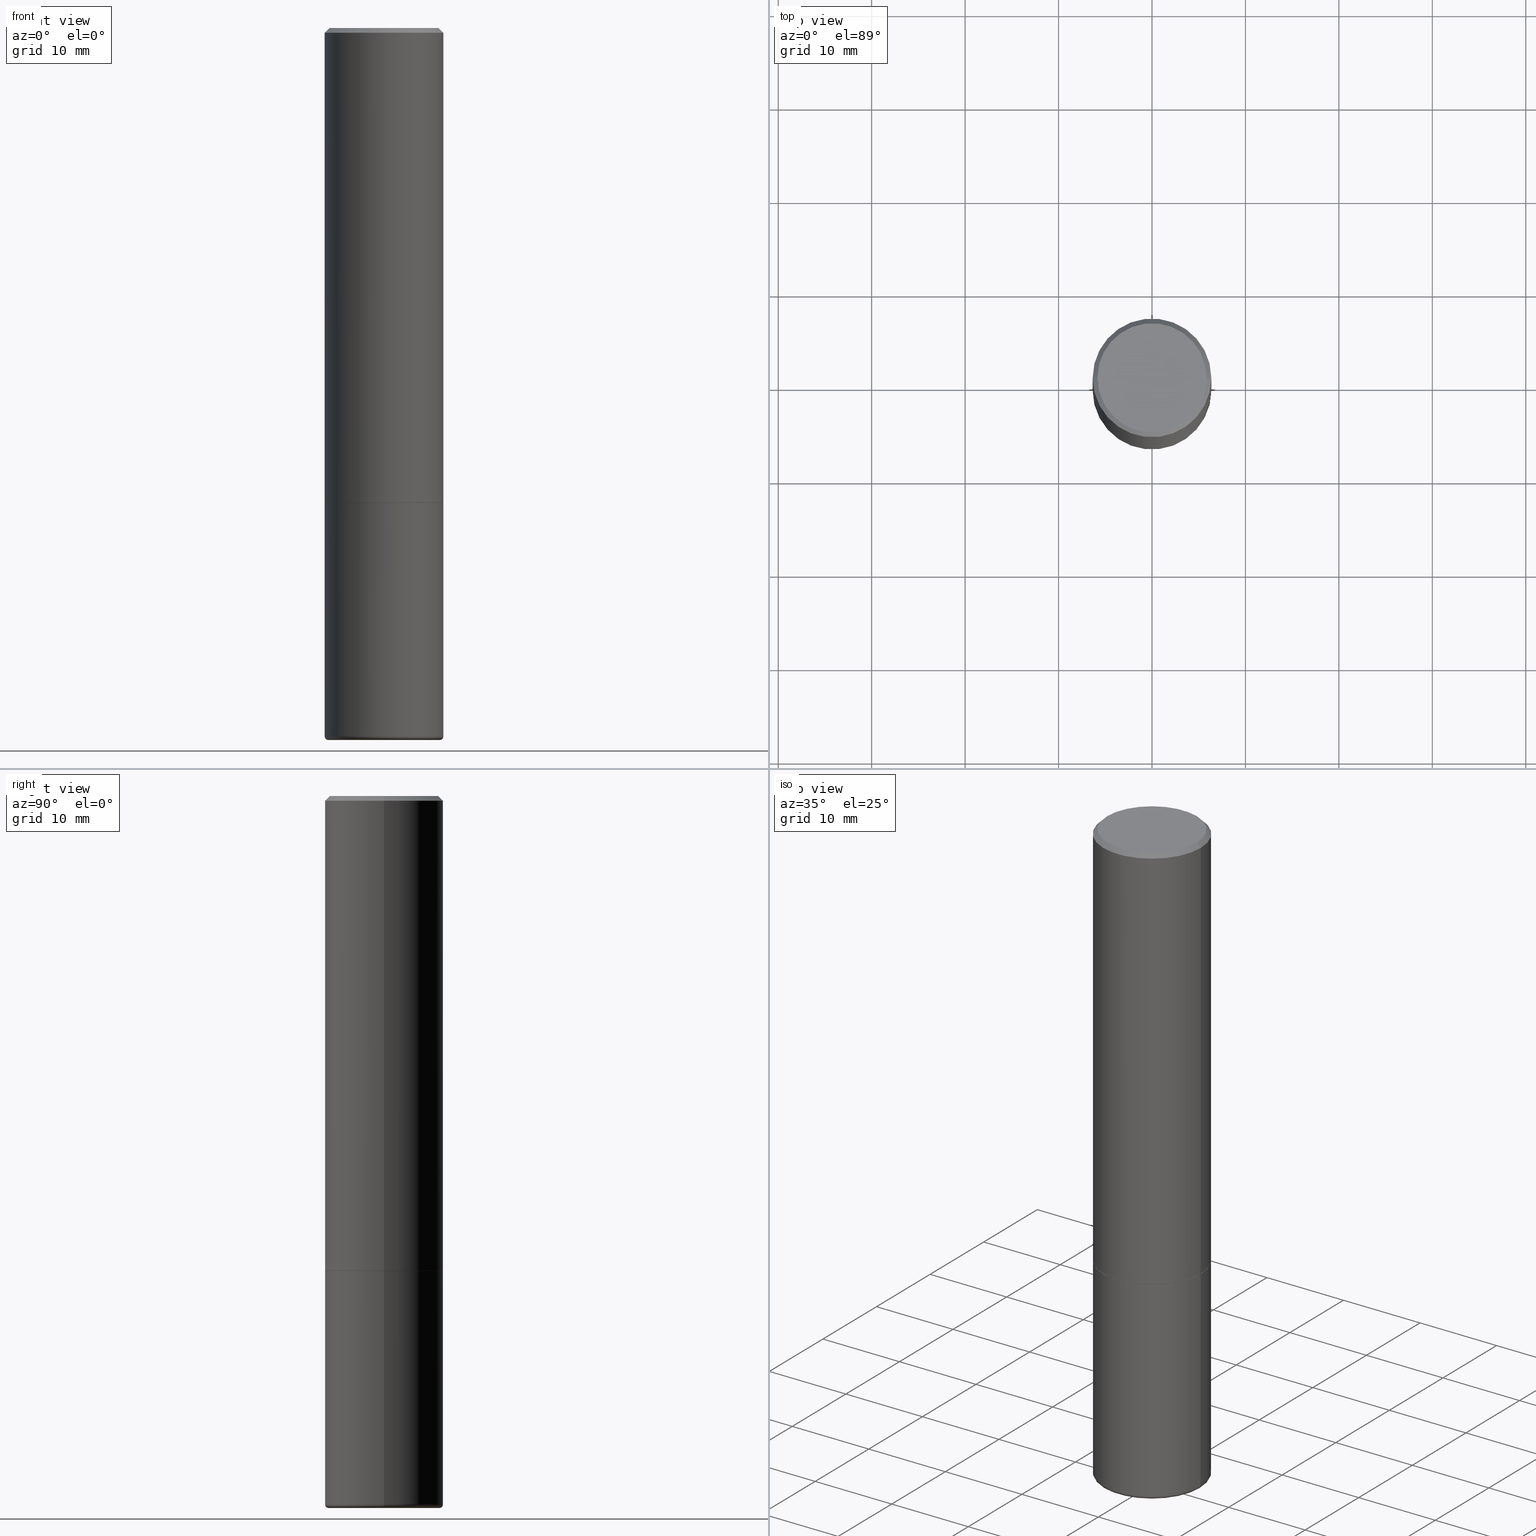
[diagram: canonical four-view strip — front | top / right | iso, engineering-drawing reading convention]
A machine part, canonical four-view strip (front | top / right | iso — engineering-drawing reading convention). The complete STEP part file that produces these views, byte-faithful:
ISO-10303-21;
HEADER;
FILE_DESCRIPTION (( 'STEP AP203' ),
    '1' );
FILE_NAME ('35604.STEP',
    '2022-11-02T20:26:05',
    ( '' ),
    ( '' ),
    'SwSTEP 2.0',
    'SolidWorks 2022',
    '' );
FILE_SCHEMA (( 'CONFIG_CONTROL_DESIGN' ));
ENDSEC;

DATA;
#1 = CARTESIAN_POINT ( 'NONE',  ( -0.2299999999999992328, 1.640996229256267392E-15, 8.537024980189468815E-18 ) ) ;
#2 = CARTESIAN_POINT ( 'NONE',  ( -0.2500000000000000000, 1.776356839400250465E-15, -1.229733772563726445E-29 ) ) ;
#3 = ORIENTED_EDGE ( 'NONE', *, *, #424, .F. ) ;
#4 = CALENDAR_DATE ( 2022, 2, 11 ) ;
#5 = VECTOR ( 'NONE', #108, 39.37007874015748143 ) ;
#6 = ORIENTED_EDGE ( 'NONE', *, *, #339, .F. ) ;
#7 = ORIENTED_EDGE ( 'NONE', *, *, #385, .F. ) ;
#8 = EDGE_CURVE ( 'NONE', #116, #348, #92, .T. ) ;
#9 = ORIENTED_EDGE ( 'NONE', *, *, #311, .T. ) ;
#10 = DIRECTION ( 'NONE',  ( -1.000000000000000000, 6.982962677686264344E-15, 0.000000000000000000 ) ) ;
#11 = AXIS2_PLACEMENT_3D ( 'NONE', #99, #437, #215 ) ;
#12 = EDGE_CURVE ( 'NONE', #35, #489, #285, .T. ) ;
#13 = AXIS2_PLACEMENT_3D ( 'NONE', #441, #356, #314 ) ;
#14 = EDGE_LOOP ( 'NONE', ( #334, #271, #75, #232 ) ) ;
#15 = DIRECTION ( 'NONE',  ( -1.000000000000000000, 6.982962677686267499E-15, 0.000000000000000000 ) ) ;
#16 = CARTESIAN_POINT ( 'NONE',  ( -0.2082041019675246463, -9.019750068704174352E-15, -2.999767298070359800 ) ) ;
#17 = CARTESIAN_POINT ( 'NONE',  ( 7.299725783202014843E-29, -1.042207379062045357E-14, -2.985000571154037718 ) ) ;
#18 = CARTESIAN_POINT ( 'NONE',  ( 0.000000000000000000, 0.000000000000000000, 0.000000000000000000 ) ) ;
#19 = CALENDAR_DATE ( 2022, 2, 11 ) ;
#20 = DIRECTION ( 'NONE',  ( 1.000000000000000000, -6.982962677686266711E-15, 4.876176775795935793E-29 ) ) ;
#21 = CIRCLE ( 'NONE', #265, 0.01499999999999983985 ) ;
#22 = PERSON_AND_ORGANIZATION ( #132, #202 ) ;
#23 = DIRECTION ( 'NONE',  ( 1.000000000000000000, -6.982962677686266711E-15, 0.000000000000000000 ) ) ;
#24 = APPLICATION_PROTOCOL_DEFINITION ( 'international standard', 'config_control_design', 1994, #453 ) ;
#25 = ADVANCED_FACE ( 'NONE', ( #210 ), #272, .T. ) ;
#26 = DIRECTION ( 'NONE',  ( 1.000000000000000000, -6.982962677686213068E-15, 0.000000000000000000 ) ) ;
#27 = CC_DESIGN_PERSON_AND_ORGANIZATION_ASSIGNMENT ( #329, #142, ( #183 ) ) ;
#28 = CARTESIAN_POINT ( 'NONE',  ( 7.299725783202014843E-29, -1.042207379062045357E-14, -2.985000571154037718 ) ) ;
#29 = CIRCLE ( 'NONE', #463, 0.2299999999999992328 ) ;
#30 = LINE ( 'NONE', #31, #150 ) ;
#31 = CARTESIAN_POINT ( 'NONE',  ( 0.2348691019675246683, -1.208576302031603783E-14, -3.000000000000000444 ) ) ;
#32 = VERTEX_POINT ( 'NONE', #282 ) ;
#33 = ADVANCED_FACE ( 'NONE', ( #426 ), #278, .T. ) ;
#34 = FACE_OUTER_BOUND ( 'NONE', #88, .T. ) ;
#35 = VERTEX_POINT ( 'NONE', #16 ) ;
#36 = CLOSED_SHELL ( 'NONE', ( #476, #200, #46, #153, #251, #144, #117, #413, #106 ) ) ;
#37 = COORDINATED_UNIVERSAL_TIME_OFFSET ( 5, 0, .BEHIND. ) ;
#38 = CIRCLE ( 'NONE', #352, 0.2082041019675246463 ) ;
#39 = DIRECTION ( 'NONE',  ( -2.445468806185136597E-29, 3.491481338843145583E-15, 1.000000000000000000 ) ) ;
#40 = ORIENTED_EDGE ( 'NONE', *, *, #159, .F. ) ;
#41 = DIRECTION ( 'NONE',  ( -2.445468806185136597E-29, 3.491481338843145583E-15, 1.000000000000000000 ) ) ;
#42 = ORIENTED_EDGE ( 'NONE', *, *, #64, .F. ) ;
#43 = VERTEX_POINT ( 'NONE', #177 ) ;
#44 = VERTEX_POINT ( 'NONE', #52 ) ;
#45 = VERTEX_POINT ( 'NONE', #435 ) ;
#46 = ADVANCED_FACE ( 'NONE', ( #90 ), #94, .T. ) ;
#47 = CARTESIAN_POINT ( 'NONE',  ( 4.890937612370273754E-29, -6.982962677686291954E-15, -2.000000000000000444 ) ) ;
#48 = ORIENTED_EDGE ( 'NONE', *, *, #290, .T. ) ;
#49 = DIRECTION ( 'NONE',  ( 1.000000000000000000, -6.982962677686270655E-15, 0.000000000000000000 ) ) ;
#50 = CONICAL_SURFACE ( 'NONE', #447, 0.2082041019675246463, 1.535889741755008586 ) ;
#51 = AXIS2_PLACEMENT_3D ( 'NONE', #469, #209, #49 ) ;
#52 = CARTESIAN_POINT ( 'NONE',  ( -0.2489999999999999991, -5.208412811295420884E-15, -2.000000000000000444 ) ) ;
#53 = DIRECTION ( 'NONE',  ( 1.000000000000000000, -6.982962677686269077E-15, 0.000000000000000000 ) ) ;
#54 = CARTESIAN_POINT ( 'NONE',  ( 7.336406418555409790E-29, -1.047444401652943635E-14, -3.000000000000000444 ) ) ;
#55 = DIRECTION ( 'NONE',  ( -1.000000000000000000, 7.105427357601001859E-15, 0.000000000000000000 ) ) ;
#56 = CARTESIAN_POINT ( 'NONE',  ( 4.890937612370273754E-29, -6.982962677686291954E-15, -2.000000000000000444 ) ) ;
#57 = APPROVAL ( #211, 'UNSPECIFIED' ) ;
#58 = CARTESIAN_POINT ( 'NONE',  ( 0.000000000000000000, 0.000000000000000000, 0.000000000000000000 ) ) ;
#59 = AXIS2_PLACEMENT_3D ( 'NONE', #168, #479, #403 ) ;
#60 = CYLINDRICAL_SURFACE ( 'NONE', #219, 0.2500000000000000000 ) ;
#61 = PERSON_AND_ORGANIZATION ( #132, #202 ) ;
#62 = DIRECTION ( 'NONE',  ( 1.000000000000000000, -6.982962677686270655E-15, 0.000000000000000000 ) ) ;
#63 =( CONVERSION_BASED_UNIT ( 'INCH', #246 ) LENGTH_UNIT ( ) NAMED_UNIT ( #338 ) );
#64 = EDGE_CURVE ( 'NONE', #444, #269, #319, .T. ) ;
#65 = CARTESIAN_POINT ( 'NONE',  ( 1.745740669421615390E-15, 0.2499999999999930334, -2.000000000000000888 ) ) ;
#66 = APPROVAL_STATUS ( 'not_yet_approved' ) ;
#67 = DIRECTION ( 'NONE',  ( 0.9993908270190957621, -6.978169709227547799E-15, -0.03489949670250241942 ) ) ;
#68 = VECTOR ( 'NONE', #297, 39.37007874015748143 ) ;
#69 = PERSON_AND_ORGANIZATION ( #132, #202 ) ;
#70 = CARTESIAN_POINT ( 'NONE',  ( 4.890937612370273754E-29, -6.982962677686291954E-15, -2.000000000000000444 ) ) ;
#71 = VERTEX_POINT ( 'NONE', #97 ) ;
#72 = LINE ( 'NONE', #226, #360 ) ;
#73 = EDGE_CURVE ( 'NONE', #32, #348, #148, .T. ) ;
#74 = DIRECTION ( 'NONE',  ( 1.000000000000000000, -6.982962677686266711E-15, 0.000000000000000000 ) ) ;
#75 = ORIENTED_EDGE ( 'NONE', *, *, #191, .F. ) ;
#76 = AXIS2_PLACEMENT_3D ( 'NONE', #54, #208, #245 ) ;
#77 = VECTOR ( 'NONE', #331, 39.37007874015748854 ) ;
#78 = DIRECTION ( 'NONE',  ( 1.000000000000000000, -6.982962677686265922E-15, 4.876176775795935793E-29 ) ) ;
#79 = ORIENTED_EDGE ( 'NONE', *, *, #185, .F. ) ;
#80 = APPROVAL_ROLE ( '' ) ;
#81 = CC_DESIGN_DATE_AND_TIME_ASSIGNMENT ( #404, #252, ( #179 ) ) ;
#82 = ORIENTED_EDGE ( 'NONE', *, *, #361, .F. ) ;
#83 = ORIENTED_EDGE ( 'NONE', *, *, #8, .F. ) ;
#84 = AXIS2_PLACEMENT_3D ( 'NONE', #47, #118, #78 ) ;
#85 = VERTEX_POINT ( 'NONE', #247 ) ;
#86 = ADVANCED_FACE ( 'NONE', ( #173 ), #350, .T. ) ;
#87 = DIRECTION ( 'NONE',  ( -2.445468806185136597E-29, 3.491481338843145583E-15, 1.000000000000000000 ) ) ;
#88 = EDGE_LOOP ( 'NONE', ( #127, #384, #155, #42 ) ) ;
#89 = CARTESIAN_POINT ( 'NONE',  ( 4.890937612370299433E-31, -6.982962677686328587E-17, -0.02000000000000010797 ) ) ;
#90 = FACE_OUTER_BOUND ( 'NONE', #14, .T. ) ;
#91 = DIRECTION ( 'NONE',  ( -2.445468806185136597E-29, 3.491481338843145583E-15, 1.000000000000000000 ) ) ;
#92 = CIRCLE ( 'NONE', #212, 0.01499999999999983985 ) ;
#93 = CONICAL_SURFACE ( 'NONE', #234, 0.2082041019675246463, 1.535889741755008586 ) ;
#94 = CYLINDRICAL_SURFACE ( 'NONE', #11, 0.2500000000000000000 ) ;
#95 = CARTESIAN_POINT ( 'NONE',  ( 0.2489999999999999991, -8.721720384430172617E-15, -2.000000000000000444 ) ) ;
#96 = APPROVAL ( #66, 'UNSPECIFIED' ) ;
#97 = CARTESIAN_POINT ( 'NONE',  ( -0.2499999999999993061, 1.675911042644698449E-15, -0.02000000000000010797 ) ) ;
#98 = CALENDAR_DATE ( 2022, 2, 11 ) ;
#99 = CARTESIAN_POINT ( 'NONE',  ( 0.000000000000000000, 0.000000000000000000, 0.000000000000000000 ) ) ;
#100 = EDGE_CURVE ( 'NONE', #158, #35, #429, .T. ) ;
#101 = PERSON_AND_ORGANIZATION ( #132, #202 ) ;
#102 = CLOSED_SHELL ( 'NONE', ( #299, #458, #86, #491, #33, #25, #400, #364 ) ) ;
#103 = LOCAL_TIME ( 16, 26, 5.000000000000000000, #107 ) ;
#104 = VERTEX_POINT ( 'NONE', #396 ) ;
#105 = LOCAL_TIME ( 16, 26, 5.000000000000000000, #293 ) ;
#106 = ADVANCED_FACE ( 'NONE', ( #433 ), #286, .F. ) ;
#107 = COORDINATED_UNIVERSAL_TIME_OFFSET ( 5, 0, .BEHIND. ) ;
#108 = DIRECTION ( 'NONE',  ( -2.445468806185136877E-29, 3.491481338843145188E-15, 1.000000000000000000 ) ) ;
#109 = MECHANICAL_CONTEXT ( 'NONE', #320, 'mechanical' ) ;
#110 = LINE ( 'NONE', #405, #68 ) ;
#111 = DIRECTION ( 'NONE',  ( 1.000000000000000000, -6.982962677686264344E-15, 0.000000000000000000 ) ) ;
#112 = AXIS2_PLACEMENT_3D ( 'NONE', #260, #486, #443 ) ;
#113 = DIRECTION ( 'NONE',  ( -0.7071067811865471286, 2.468850131082252722E-15, -0.7071067811865479058 ) ) ;
#114 = EDGE_LOOP ( 'NONE', ( #417, #457 ) ) ;
#115 = DIRECTION ( 'NONE',  ( -1.000000000000000000, 6.982962677686269077E-15, 0.000000000000000000 ) ) ;
#116 = VERTEX_POINT ( 'NONE', #357 ) ;
#117 = ADVANCED_FACE ( 'NONE', ( #399 ), #60, .T. ) ;
#118 = DIRECTION ( 'NONE',  ( -2.438088387897960049E-29, 3.491481338843145188E-15, 1.000000000000000000 ) ) ;
#119 = AXIS2_PLACEMENT_3D ( 'NONE', #255, #449, #111 ) ;
#120 = CC_DESIGN_PERSON_AND_ORGANIZATION_ASSIGNMENT ( #101, #408, ( #121 ) ) ;
#121 = PRODUCT_DEFINITION_FORMATION_WITH_SPECIFIED_SOURCE ( 'ANY', '', #183, .NOT_KNOWN. ) ;
#122 = CARTESIAN_POINT ( 'NONE',  ( -0.2350000000000001810, -8.752298361584217436E-15, -2.985000571154037718 ) ) ;
#123 = ORIENTED_EDGE ( 'NONE', *, *, #427, .T. ) ;
#124 = ORIENTED_EDGE ( 'NONE', *, *, #387, .F. ) ;
#125 = ORIENTED_EDGE ( 'NONE', *, *, #225, .T. ) ;
#126 = AXIS2_PLACEMENT_3D ( 'NONE', #58, #332, #137 ) ;
#127 = ORIENTED_EDGE ( 'NONE', *, *, #138, .T. ) ;
#128 = FACE_OUTER_BOUND ( 'NONE', #197, .T. ) ;
#129 = ORIENTED_EDGE ( 'NONE', *, *, #261, .F. ) ;
#130 = DIRECTION ( 'NONE',  ( -2.445468806185136877E-29, 3.491481338843145188E-15, 1.000000000000000000 ) ) ;
#131 = DIRECTION ( 'NONE',  ( -1.000000000000000000, 6.982962677686267499E-15, 0.000000000000000000 ) ) ;
#132 = PERSON ( 'UNSPECIFIED', 'UNSPECIFIED', 'UNSPECIFIED', ('UNSPECIFIED'), ('UNSPECIFIED'), ('UNSPECIFIED') ) ;
#133 = DIRECTION ( 'NONE',  ( -2.445468806185136597E-29, 3.491481338843145583E-15, 1.000000000000000000 ) ) ;
#134 = CIRCLE ( 'NONE', #213, 0.2348691019675246683 ) ;
#135 = ORIENTED_EDGE ( 'NONE', *, *, #8, .T. ) ;
#136 = DIRECTION ( 'NONE',  ( -6.982962677686266711E-15, -1.000000000000000000, 3.491481338843145583E-15 ) ) ;
#137 = DIRECTION ( 'NONE',  ( 1.000000000000000000, 0.000000000000000000, 0.000000000000000000 ) ) ;
#138 = EDGE_CURVE ( 'NONE', #444, #44, #414, .T. ) ;
#139 = PLANE ( 'NONE',  #480 ) ;
#140 = COORDINATED_UNIVERSAL_TIME_OFFSET ( 5, 0, .BEHIND. ) ;
#141 = DIRECTION ( 'NONE',  ( -0.9999619230641714207, 6.952228252019186602E-15, -0.008726535498369011531 ) ) ;
#142 = PERSON_AND_ORGANIZATION_ROLE ( 'design_owner' ) ;
#143 = LINE ( 'NONE', #409, #391 ) ;
#144 = ADVANCED_FACE ( 'NONE', ( #477 ), #139, .F. ) ;
#145 = LINE ( 'NONE', #407, #455 ) ;
#146 = EDGE_CURVE ( 'NONE', #348, #45, #188, .T. ) ;
#147 = CARTESIAN_POINT ( 'NONE',  ( -2.087702828670439639E-46, 2.980686340760894400E-32, 8.537024980200822558E-18 ) ) ;
#148 = CIRCLE ( 'NONE', #189, 0.2500000000000000000 ) ;
#149 = ORIENTED_EDGE ( 'NONE', *, *, #339, .T. ) ;
#150 = VECTOR ( 'NONE', #300, 39.37007874015748854 ) ;
#151 = DIRECTION ( 'NONE',  ( 1.000000000000000000, -6.982962677686269866E-15, 4.883557194083114022E-29 ) ) ;
#152 = DIRECTION ( 'NONE',  ( 1.000000000000000000, -6.982962677686266711E-15, 0.000000000000000000 ) ) ;
#153 = ADVANCED_FACE ( 'NONE', ( #253 ), #50, .F. ) ;
#154 = CARTESIAN_POINT ( 'NONE',  ( 1.606081415867835743E-15, 0.2299999999999992328, -7.987721954438203042E-16 ) ) ;
#155 = ORIENTED_EDGE ( 'NONE', *, *, #419, .F. ) ;
#156 = CIRCLE ( 'NONE', #490, 0.2299999999999992328 ) ;
#157 = ORIENTED_EDGE ( 'NONE', *, *, #474, .T. ) ;
#158 = VERTEX_POINT ( 'NONE', #370 ) ;
#159 = EDGE_CURVE ( 'NONE', #235, #347, #110, .T. ) ;
#160 = EDGE_LOOP ( 'NONE', ( #40, #418, #412, #125 ) ) ;
#161 = AXIS2_PLACEMENT_3D ( 'NONE', #203, #390, #53 ) ;
#162 = CARTESIAN_POINT ( 'NONE',  ( -0.2348691019675246683, -8.725657812587205291E-15, -3.000000000000000444 ) ) ;
#163 = EDGE_LOOP ( 'NONE', ( #224, #9, #48, #230 ) ) ;
#164 = DIRECTION ( 'NONE',  ( -1.000000000000000000, 6.982962677686265922E-15, -4.876176775795935793E-29 ) ) ;
#165 = DIRECTION ( 'NONE',  ( 2.445468806185136597E-29, -3.491481338843145583E-15, -1.000000000000000000 ) ) ;
#166 = EDGE_CURVE ( 'NONE', #116, #489, #328, .T. ) ;
#167 = CARTESIAN_POINT ( 'NONE',  ( 0.2499999999999993061, -1.784954126219741456E-15, -0.02000000000000010797 ) ) ;
#168 = CARTESIAN_POINT ( 'NONE',  ( 4.890937612370273754E-29, -6.982962677686291954E-15, -2.000000000000000444 ) ) ;
#169 = EDGE_CURVE ( 'NONE', #43, #71, #186, .T. ) ;
#170 = AXIS2_PLACEMENT_3D ( 'NONE', #56, #363, #23 ) ;
#171 = CIRCLE ( 'NONE', #448, 0.2500000000000000000 ) ;
#172 = CC_DESIGN_SECURITY_CLASSIFICATION ( #179, ( #121 ) ) ;
#173 = FACE_OUTER_BOUND ( 'NONE', #464, .T. ) ;
#174 = CALENDAR_DATE ( 2022, 2, 11 ) ;
#175 = CARTESIAN_POINT ( 'NONE',  ( 0.000000000000000000, 0.000000000000000000, 0.000000000000000000 ) ) ;
#176 = PERSON_AND_ORGANIZATION ( #132, #202 ) ;
#177 = CARTESIAN_POINT ( 'NONE',  ( -0.2500000000000000000, -1.748293572161900530E-15, -1.999000000000000110 ) ) ;
#178 = AXIS2_PLACEMENT_3D ( 'NONE', #70, #294, #377 ) ;
#179 = SECURITY_CLASSIFICATION ( '', '', #402 ) ;
#180 = DIRECTION ( 'NONE',  ( 2.445468806185136597E-29, -3.491481338843145583E-15, -1.000000000000000000 ) ) ;
#181 = CC_DESIGN_APPROVAL ( #307, ( #179 ) ) ;
#182 = ORIENTED_EDGE ( 'NONE', *, *, #354, .F. ) ;
#183 = PRODUCT ( '35604', '35604', '', ( #109 ) ) ;
#184 = DIRECTION ( 'NONE',  ( -2.445468806185136877E-29, 3.491481338843145188E-15, 1.000000000000000000 ) ) ;
#185 = EDGE_CURVE ( 'NONE', #315, #71, #143, .T. ) ;
#186 = LINE ( 'NONE', #291, #233 ) ;
#187 = EDGE_LOOP ( 'NONE', ( #468, #190 ) ) ;
#188 = LINE ( 'NONE', #259, #5 ) ;
#189 = AXIS2_PLACEMENT_3D ( 'NONE', #327, #240, #62 ) ;
#190 = ORIENTED_EDGE ( 'NONE', *, *, #424, .T. ) ;
#191 = EDGE_CURVE ( 'NONE', #45, #104, #344, .T. ) ;
#192 = CARTESIAN_POINT ( 'NONE',  ( 7.335837353245335032E-29, -1.047363154208458493E-14, -2.999767298070359800 ) ) ;
#193 = DIRECTION ( 'NONE',  ( 1.000000000000000000, -6.982962677686269077E-15, 0.000000000000000000 ) ) ;
#194 = EDGE_LOOP ( 'NONE', ( #452, #309, #6 ) ) ;
#195 = ORIENTED_EDGE ( 'NONE', *, *, #326, .F. ) ;
#196 = AXIS2_PLACEMENT_3D ( 'NONE', #280, #388, #229 ) ;
#197 = EDGE_LOOP ( 'NONE', ( #123, #231, #276, #351 ) ) ;
#198 = ORIENTED_EDGE ( 'NONE', *, *, #166, .F. ) ;
#199 = DIRECTION ( 'NONE',  ( 2.445468806185136597E-29, -3.491481338843145583E-15, -1.000000000000000000 ) ) ;
#200 = ADVANCED_FACE ( 'NONE', ( #222 ), #454, .T. ) ;
#201 = ORIENTED_EDGE ( 'NONE', *, *, #385, .T. ) ;
#202 = ORGANIZATION ( 'UNSPECIFIED', 'UNSPECIFIED', '' ) ;
#203 = CARTESIAN_POINT ( 'NONE',  ( 7.335837353245335032E-29, -1.047363154208458493E-14, -2.999767298070359800 ) ) ;
#204 = CC_DESIGN_PERSON_AND_ORGANIZATION_ASSIGNMENT ( #256, #248, ( #121 ) ) ;
#205 = EDGE_LOOP ( 'NONE', ( #386, #237, #7, #389 ) ) ;
#206 = CARTESIAN_POINT ( 'NONE',  ( -2.087702828670439639E-46, 2.980686340760894400E-32, 8.537024980200822558E-18 ) ) ;
#207 = UNCERTAINTY_MEASURE_WITH_UNIT (LENGTH_MEASURE( 1.000000000000000082E-05 ), #63, 'distance_accuracy_value', 'NONE');
#208 = DIRECTION ( 'NONE',  ( 2.445468806185136597E-29, -3.491481338843145583E-15, -1.000000000000000000 ) ) ;
#209 = DIRECTION ( 'NONE',  ( -2.445468806185136597E-29, 3.491481338843145583E-15, 1.000000000000000000 ) ) ;
#210 = FACE_OUTER_BOUND ( 'NONE', #343, .T. ) ;
#211 = APPROVAL_STATUS ( 'not_yet_approved' ) ;
#212 = AXIS2_PLACEMENT_3D ( 'NONE', #355, #136, #26 ) ;
#213 = AXIS2_PLACEMENT_3D ( 'NONE', #267, #87, #236 ) ;
#214 = ORIENTED_EDGE ( 'NONE', *, *, #146, .T. ) ;
#215 = DIRECTION ( 'NONE',  ( 1.000000000000000000, -6.982962677686266711E-15, 4.876176775795935793E-29 ) ) ;
#216 = PERSON_AND_ORGANIZATION ( #132, #202 ) ;
#217 = DIRECTION ( 'NONE',  ( -2.445468806185136597E-29, 3.491481338843145583E-15, 1.000000000000000000 ) ) ;
#218 =( NAMED_UNIT ( * ) PLANE_ANGLE_UNIT ( ) SI_UNIT ( $, .RADIAN. ) );
#219 = AXIS2_PLACEMENT_3D ( 'NONE', #18, #398, #324 ) ;
#220 = PRODUCT_RELATED_PRODUCT_CATEGORY ( 'detail', '', ( #183 ) ) ;
#221 = AXIS2_PLACEMENT_3D ( 'NONE', #303, #91, #316 ) ;
#222 = FACE_OUTER_BOUND ( 'NONE', #323, .T. ) ;
#223 = DIRECTION ( 'NONE',  ( -1.000000000000000000, 6.982962677686269077E-15, 0.000000000000000000 ) ) ;
#224 = ORIENTED_EDGE ( 'NONE', *, *, #169, .F. ) ;
#225 = EDGE_CURVE ( 'NONE', #71, #347, #295, .T. ) ;
#226 = CARTESIAN_POINT ( 'NONE',  ( 0.2499999999999996669, -1.745740669421564311E-15, 1.219044193948982267E-29 ) ) ;
#227 = CARTESIAN_POINT ( 'NONE',  ( 4.888492143564088712E-29, -6.979471196347448158E-15, -1.999000000000000110 ) ) ;
#228 = AXIS2_PLACEMENT_3D ( 'NONE', #379, #432, #152 ) ;
#229 = DIRECTION ( 'NONE',  ( 1.000000000000000000, -6.982962677686266711E-15, 0.000000000000000000 ) ) ;
#230 = ORIENTED_EDGE ( 'NONE', *, *, #225, .F. ) ;
#231 = ORIENTED_EDGE ( 'NONE', *, *, #270, .T. ) ;
#232 = ORIENTED_EDGE ( 'NONE', *, *, #146, .F. ) ;
#233 = VECTOR ( 'NONE', #184, 39.37007874015748143 ) ;
#234 = AXIS2_PLACEMENT_3D ( 'NONE', #488, #180, #223 ) ;
#235 = VERTEX_POINT ( 'NONE', #333 ) ;
#236 = DIRECTION ( 'NONE',  ( 1.000000000000000000, -6.982962677686264344E-15, 0.000000000000000000 ) ) ;
#237 = ORIENTED_EDGE ( 'NONE', *, *, #169, .T. ) ;
#238 = DIRECTION ( 'NONE',  ( 2.445468806185136597E-29, -3.491481338843145583E-15, -1.000000000000000000 ) ) ;
#239 = DESIGN_CONTEXT ( 'detailed design', #453, 'design' ) ;
#240 = DIRECTION ( 'NONE',  ( -2.445468806185136597E-29, 3.491481338843145583E-15, 1.000000000000000000 ) ) ;
#241 = CIRCLE ( 'NONE', #161, 0.2082041019675246463 ) ;
#242 = ADVANCED_BREP_SHAPE_REPRESENTATION ( '35604', ( #461, #301, #126 ), #335 ) ;
#243 = CARTESIAN_POINT ( 'NONE',  ( -0.2082041019675246463, -9.019750068704174352E-15, -2.999767298070359800 ) ) ;
#244 = CYLINDRICAL_SURFACE ( 'NONE', #279, 0.2499999999999996669 ) ;
#245 = DIRECTION ( 'NONE',  ( -1.000000000000000000, 6.982962677686264344E-15, 0.000000000000000000 ) ) ;
#246 = LENGTH_MEASURE_WITH_UNIT ( LENGTH_MEASURE( 0.02539999999999999897 ), #485 );
#247 = CARTESIAN_POINT ( 'NONE',  ( 0.2082041019675246463, -1.190201536676060908E-14, -2.999767298070359800 ) ) ;
#248 = PERSON_AND_ORGANIZATION_ROLE ( 'creator' ) ;
#249 = TOROIDAL_SURFACE ( 'NONE', #304, 0.2350000000000001810, 0.01499999999999985199 ) ;
#250 = DIRECTION ( 'NONE',  ( -0.9993908270190957621, 6.856857904024552526E-15, -0.03489949670250241942 ) ) ;
#251 = ADVANCED_FACE ( 'NONE', ( #492 ), #93, .F. ) ;
#252 = DATE_TIME_ROLE ( 'classification_date' ) ;
#253 = FACE_OUTER_BOUND ( 'NONE', #459, .T. ) ;
#254 = CALENDAR_DATE ( 2022, 2, 11 ) ;
#255 = CARTESIAN_POINT ( 'NONE',  ( 7.336406418555409790E-29, -1.047444401652943635E-14, -3.000000000000000444 ) ) ;
#256 = PERSON_AND_ORGANIZATION ( #132, #202 ) ;
#257 = VECTOR ( 'NONE', #471, 39.37007874015748854 ) ;
#258 = AXIS2_PLACEMENT_3D ( 'NONE', #275, #199, #10 ) ;
#259 = CARTESIAN_POINT ( 'NONE',  ( 0.2500000000000000000, -1.745740669421566678E-15, 1.219044193948983948E-29 ) ) ;
#260 = CARTESIAN_POINT ( 'NONE',  ( 4.890937612370299433E-31, -6.982962677686328587E-17, -0.02000000000000010797 ) ) ;
#261 = EDGE_CURVE ( 'NONE', #44, #43, #262, .T. ) ;
#262 = LINE ( 'NONE', #372, #77 ) ;
#263 = ORIENTED_EDGE ( 'NONE', *, *, #311, .F. ) ;
#264 = DIRECTION ( 'NONE',  ( 1.000000000000000000, -6.982962677686269866E-15, 4.883557194083114022E-29 ) ) ;
#265 = AXIS2_PLACEMENT_3D ( 'NONE', #122, #349, #55 ) ;
#266 = EDGE_CURVE ( 'NONE', #158, #85, #145, .T. ) ;
#267 = CARTESIAN_POINT ( 'NONE',  ( 7.336406418555409790E-29, -1.047444401652943635E-14, -3.000000000000000444 ) ) ;
#268 = ORIENTED_EDGE ( 'NONE', *, *, #166, .T. ) ;
#269 = VERTEX_POINT ( 'NONE', #450 ) ;
#270 = EDGE_CURVE ( 'NONE', #85, #116, #30, .T. ) ;
#271 = ORIENTED_EDGE ( 'NONE', *, *, #361, .T. ) ;
#272 = CONICAL_SURFACE ( 'NONE', #59, 0.2489999999999999991, 0.7853981633974141952 ) ;
#273 = ORIENTED_EDGE ( 'NONE', *, *, #427, .F. ) ;
#274 = EDGE_CURVE ( 'NONE', #315, #235, #156, .T. ) ;
#275 = CARTESIAN_POINT ( 'NONE',  ( 7.336406418555409790E-29, -1.047444401652943635E-14, -3.000000000000000444 ) ) ;
#276 = ORIENTED_EDGE ( 'NONE', *, *, #474, .F. ) ;
#277 = PLANE ( 'NONE',  #430 ) ;
#278 = CYLINDRICAL_SURFACE ( 'NONE', #438, 0.2499999999999996669 ) ;
#279 = AXIS2_PLACEMENT_3D ( 'NONE', #394, #397, #456 ) ;
#280 = CARTESIAN_POINT ( 'NONE',  ( 4.888492143564088712E-29, -6.979471196347448158E-15, -1.999000000000000110 ) ) ;
#281 = CARTESIAN_POINT ( 'NONE',  ( -0.2348691019675246683, -8.834361843348522758E-15, -3.000000000000000444 ) ) ;
#282 = CARTESIAN_POINT ( 'NONE',  ( -0.2500000000000000000, -6.926161394753122296E-15, -2.985000571154037718 ) ) ;
#283 = DATE_AND_TIME ( #254, #105 ) ;
#284 = PRODUCT_DEFINITION_SHAPE ( 'NONE', 'NONE',  #434 ) ;
#285 = LINE ( 'NONE', #281, #374 ) ;
#286 = CONICAL_SURFACE ( 'NONE', #76, 0.2348691019675246683, 1.562069680534929894 ) ;
#287 = APPROVAL_DATE_TIME ( #283, #57 ) ;
#288 = CIRCLE ( 'NONE', #13, 0.2489999999999999991 ) ;
#289 = DIRECTION ( 'NONE',  ( -2.445468806185136597E-29, 3.491481338843145583E-15, 1.000000000000000000 ) ) ;
#290 = EDGE_CURVE ( 'NONE', #269, #347, #72, .T. ) ;
#291 = CARTESIAN_POINT ( 'NONE',  ( -0.2499999999999996669, 1.776356839400248098E-15, -1.229733772563724764E-29 ) ) ;
#292 = EDGE_LOOP ( 'NONE', ( #317, #195 ) ) ;
#293 = COORDINATED_UNIVERSAL_TIME_OFFSET ( 5, 0, .BEHIND. ) ;
#294 = DIRECTION ( 'NONE',  ( -2.445468806185136597E-29, 3.491481338843145583E-15, 1.000000000000000000 ) ) ;
#295 = CIRCLE ( 'NONE', #112, 0.2499999999999993061 ) ;
#296 = CIRCLE ( 'NONE', #221, 0.2499999999999993061 ) ;
#297 = DIRECTION ( 'NONE',  ( 0.7071067811865471286, -7.319954787623254468E-15, -0.7071067811865479058 ) ) ;
#298 = ORIENTED_EDGE ( 'NONE', *, *, #378, .F. ) ;
#299 = ADVANCED_FACE ( 'NONE', ( #34 ), #383, .T. ) ;
#300 = DIRECTION ( 'NONE',  ( 0.9999619230641714207, -6.890705306874825328E-15, -0.008726535498369011531 ) ) ;
#301 = MANIFOLD_SOLID_BREP ( 'Body-Move/Copy2[2]', #102 ) ;
#302 = FACE_OUTER_BOUND ( 'NONE', #114, .T. ) ;
#303 = CARTESIAN_POINT ( 'NONE',  ( 4.890937612370299433E-31, -6.982962677686328587E-17, -0.02000000000000010797 ) ) ;
#304 = AXIS2_PLACEMENT_3D ( 'NONE', #17, #133, #264 ) ;
#305 = EDGE_LOOP ( 'NONE', ( #82, #337, #214, #3 ) ) ;
#306 = LOCAL_TIME ( 16, 26, 5.000000000000000000, #140 ) ;
#307 = APPROVAL ( #366, 'UNSPECIFIED' ) ;
#308 = SHAPE_DEFINITION_REPRESENTATION ( #284, #242 ) ;
#309 = ORIENTED_EDGE ( 'NONE', *, *, #100, .T. ) ;
#310 = ORIENTED_EDGE ( 'NONE', *, *, #100, .F. ) ;
#311 = EDGE_CURVE ( 'NONE', #43, #269, #171, .T. ) ;
#312 = ORIENTED_EDGE ( 'NONE', *, *, #270, .F. ) ;
#313 = LOCAL_TIME ( 16, 26, 5.000000000000000000, #37 ) ;
#314 = DIRECTION ( 'NONE',  ( 1.000000000000000000, -6.982962677686266711E-15, 0.000000000000000000 ) ) ;
#315 = VERTEX_POINT ( 'NONE', #1 ) ;
#316 = DIRECTION ( 'NONE',  ( 1.000000000000000000, -6.982962677686267499E-15, 0.000000000000000000 ) ) ;
#317 = ORIENTED_EDGE ( 'NONE', *, *, #138, .F. ) ;
#318 = LINE ( 'NONE', #2, #420 ) ;
#319 = LINE ( 'NONE', #365, #257 ) ;
#320 = APPLICATION_CONTEXT ( 'configuration controlled 3d designs of mechanical parts and assemblies' ) ;
#321 = CIRCLE ( 'NONE', #196, 0.2500000000000000000 ) ;
#322 = COORDINATED_UNIVERSAL_TIME_OFFSET ( 5, 0, .BEHIND. ) ;
#323 = EDGE_LOOP ( 'NONE', ( #268, #421, #298, #83 ) ) ;
#324 = DIRECTION ( 'NONE',  ( 1.000000000000000000, -6.982962677686266711E-15, 4.876176775795935793E-29 ) ) ;
#325 = APPLICATION_PROTOCOL_DEFINITION ( 'international standard', 'config_control_design', 1994, #320 ) ;
#326 = EDGE_CURVE ( 'NONE', #44, #444, #288, .T. ) ;
#327 = CARTESIAN_POINT ( 'NONE',  ( 7.299725783202014843E-29, -1.042207379062045357E-14, -2.985000571154037718 ) ) ;
#328 = CIRCLE ( 'NONE', #119, 0.2348691019675246683 ) ;
#329 = PERSON_AND_ORGANIZATION ( #132, #202 ) ;
#330 = LOCAL_TIME ( 16, 26, 5.000000000000000000, #322 ) ;
#331 = DIRECTION ( 'NONE',  ( -0.7071067811865232589, 7.493145998870265808E-15, 0.7071067811865715536 ) ) ;
#332 = DIRECTION ( 'NONE',  ( 0.000000000000000000, 0.000000000000000000, 1.000000000000000000 ) ) ;
#333 = CARTESIAN_POINT ( 'NONE',  ( 0.2299999999999992328, -1.681434332853594278E-15, 8.537024980212318048E-18 ) ) ;
#334 = ORIENTED_EDGE ( 'NONE', *, *, #378, .T. ) ;
#335 =( GEOMETRIC_REPRESENTATION_CONTEXT ( 3 ) GLOBAL_UNCERTAINTY_ASSIGNED_CONTEXT ( ( #207 ) ) GLOBAL_UNIT_ASSIGNED_CONTEXT ( ( #63, #218, #362 ) ) REPRESENTATION_CONTEXT ( 'NONE', 'WORKASPACE' ) );
#336 = CARTESIAN_POINT ( 'NONE',  ( 4.890937612370273754E-29, -6.982962677686291954E-15, -2.000000000000000444 ) ) ;
#337 = ORIENTED_EDGE ( 'NONE', *, *, #73, .T. ) ;
#338 = DIMENSIONAL_EXPONENTS ( 1.000000000000000000, 0.000000000000000000, 0.000000000000000000, 0.000000000000000000, 0.000000000000000000, 0.000000000000000000, 0.000000000000000000 ) ;
#339 = EDGE_CURVE ( 'NONE', #85, #35, #241, .T. ) ;
#340 = DIRECTION ( 'NONE',  ( 1.000000000000000000, -6.982962677686266711E-15, 0.000000000000000000 ) ) ;
#341 = CARTESIAN_POINT ( 'NONE',  ( 0.2500000000000000000, -1.216781446004202182E-14, -2.985000571154037718 ) ) ;
#342 = CC_DESIGN_PERSON_AND_ORGANIZATION_ASSIGNMENT ( #61, #478, ( #179 ) ) ;
#343 = EDGE_LOOP ( 'NONE', ( #129, #460, #423, #263 ) ) ;
#344 = CIRCLE ( 'NONE', #178, 0.2500000000000000000 ) ;
#345 = AXIS2_PLACEMENT_3D ( 'NONE', #89, #238, #15 ) ;
#346 = ORIENTED_EDGE ( 'NONE', *, *, #73, .F. ) ;
#347 = VERTEX_POINT ( 'NONE', #167 ) ;
#348 = VERTEX_POINT ( 'NONE', #341 ) ;
#349 = DIRECTION ( 'NONE',  ( 7.105427357601001859E-15, 1.000000000000000000, -3.491481338843145583E-15 ) ) ;
#350 = CONICAL_SURFACE ( 'NONE', #382, 0.2499999999999993061, 0.7853981633974477239 ) ;
#351 = ORIENTED_EDGE ( 'NONE', *, *, #12, .F. ) ;
#352 = AXIS2_PLACEMENT_3D ( 'NONE', #467, #41, #193 ) ;
#353 = DIRECTION ( 'NONE',  ( -2.445468806185136597E-29, 3.491481338843145583E-15, 1.000000000000000000 ) ) ;
#354 = EDGE_CURVE ( 'NONE', #489, #32, #21, .T. ) ;
#355 = CARTESIAN_POINT ( 'NONE',  ( 0.2350000000000001810, -1.206307001987672688E-14, -2.985000571154037718 ) ) ;
#356 = DIRECTION ( 'NONE',  ( -2.445468806185136597E-29, 3.491481338843145583E-15, 1.000000000000000000 ) ) ;
#357 = CARTESIAN_POINT ( 'NONE',  ( 0.2348691019675246683, -1.211452618971035153E-14, -3.000000000000000444 ) ) ;
#358 = FACE_OUTER_BOUND ( 'NONE', #292, .T. ) ;
#359 = DIRECTION ( 'NONE',  ( -2.445468806185136597E-29, 3.491481338843145583E-15, 1.000000000000000000 ) ) ;
#360 = VECTOR ( 'NONE', #373, 39.37007874015748143 ) ;
#361 = EDGE_CURVE ( 'NONE', #32, #104, #318, .T. ) ;
#362 =( NAMED_UNIT ( * ) SI_UNIT ( $, .STERADIAN. ) SOLID_ANGLE_UNIT ( ) );
#363 = DIRECTION ( 'NONE',  ( -2.445468806185136597E-29, 3.491481338843145583E-15, 1.000000000000000000 ) ) ;
#364 = ADVANCED_FACE ( 'NONE', ( #302 ), #277, .F. ) ;
#365 = CARTESIAN_POINT ( 'NONE',  ( 0.2489999999999999991, -8.721720384430172617E-15, -2.000000000000000444 ) ) ;
#366 = APPROVAL_STATUS ( 'not_yet_approved' ) ;
#367 = DIRECTION ( 'NONE',  ( -1.000000000000000000, 6.982962677686265922E-15, -4.876176775795935793E-29 ) ) ;
#368 = DATE_AND_TIME ( #174, #103 ) ;
#369 = AXIS2_PLACEMENT_3D ( 'NONE', #336, #411, #74 ) ;
#370 = CARTESIAN_POINT ( 'NONE',  ( 7.318124011218951646E-29, -1.044815055147217763E-14, -2.992496650618315268 ) ) ;
#371 = DATE_AND_TIME ( #4, #313 ) ;
#372 = CARTESIAN_POINT ( 'NONE',  ( -0.2489999999999999991, -5.213711265643642498E-15, -2.000000000000000444 ) ) ;
#373 = DIRECTION ( 'NONE',  ( -2.445468806185136877E-29, 3.491481338843145188E-15, 1.000000000000000000 ) ) ;
#374 = VECTOR ( 'NONE', #141, 39.37007874015748854 ) ;
#375 = CC_DESIGN_APPROVAL ( #96, ( #121 ) ) ;
#376 = CONICAL_SURFACE ( 'NONE', #345, 0.2499999999999993061, 0.7853981633974477239 ) ;
#377 = DIRECTION ( 'NONE',  ( 1.000000000000000000, -6.982962677686266711E-15, 0.000000000000000000 ) ) ;
#378 = EDGE_CURVE ( 'NONE', #348, #32, #401, .T. ) ;
#379 = CARTESIAN_POINT ( 'NONE',  ( 4.890937612370273754E-29, -6.982962677686291954E-15, -2.000000000000000444 ) ) ;
#380 = EDGE_LOOP ( 'NONE', ( #312, #149, #483, #198 ) ) ;
#381 = EDGE_LOOP ( 'NONE', ( #182, #157, #135, #346 ) ) ;
#382 = AXIS2_PLACEMENT_3D ( 'NONE', #392, #165, #131 ) ;
#383 = CONICAL_SURFACE ( 'NONE', #369, 0.2489999999999999991, 0.7853981633974141952 ) ;
#384 = ORIENTED_EDGE ( 'NONE', *, *, #261, .T. ) ;
#385 = EDGE_CURVE ( 'NONE', #347, #71, #296, .T. ) ;
#386 = ORIENTED_EDGE ( 'NONE', *, *, #419, .T. ) ;
#387 = EDGE_CURVE ( 'NONE', #235, #315, #29, .T. ) ;
#388 = DIRECTION ( 'NONE',  ( -2.445468806185136597E-29, 3.491481338843145583E-15, 1.000000000000000000 ) ) ;
#389 = ORIENTED_EDGE ( 'NONE', *, *, #290, .F. ) ;
#390 = DIRECTION ( 'NONE',  ( -2.445468806185136597E-29, 3.491481338843145583E-15, 1.000000000000000000 ) ) ;
#391 = VECTOR ( 'NONE', #113, 39.37007874015748143 ) ;
#392 = CARTESIAN_POINT ( 'NONE',  ( 4.890937612370299433E-31, -6.982962677686328587E-17, -0.02000000000000010797 ) ) ;
#393 = APPROVAL_PERSON_ORGANIZATION ( #22, #96, #440 ) ;
#394 = CARTESIAN_POINT ( 'NONE',  ( 0.000000000000000000, 0.000000000000000000, 0.000000000000000000 ) ) ;
#395 = CC_DESIGN_DATE_AND_TIME_ASSIGNMENT ( #406, #445, ( #434 ) ) ;
#396 = CARTESIAN_POINT ( 'NONE',  ( -0.2500000000000000000, -6.926161394753122296E-15, -2.000000000000000444 ) ) ;
#397 = DIRECTION ( 'NONE',  ( -2.445468806185136597E-29, 3.491481338843145583E-15, 1.000000000000000000 ) ) ;
#398 = DIRECTION ( 'NONE',  ( -2.445468806185136597E-29, 3.491481338843145583E-15, 1.000000000000000000 ) ) ;
#399 = FACE_OUTER_BOUND ( 'NONE', #305, .T. ) ;
#400 = ADVANCED_FACE ( 'NONE', ( #358 ), #451, .F. ) ;
#401 = CIRCLE ( 'NONE', #51, 0.2500000000000000000 ) ;
#402 = SECURITY_CLASSIFICATION_LEVEL ( 'unclassified' ) ;
#403 = DIRECTION ( 'NONE',  ( 1.000000000000000000, -6.982962677686266711E-15, 0.000000000000000000 ) ) ;
#404 = DATE_AND_TIME ( #19, #306 ) ;
#405 = CARTESIAN_POINT ( 'NONE',  ( 0.2499999999999993061, -1.784954126219741456E-15, -0.02000000000000010797 ) ) ;
#406 = DATE_AND_TIME ( #98, #330 ) ;
#407 = CARTESIAN_POINT ( 'NONE',  ( 0.2082041019675246463, -1.190201536676060908E-14, -2.999767298070359800 ) ) ;
#408 = PERSON_AND_ORGANIZATION_ROLE ( 'design_supplier' ) ;
#409 = CARTESIAN_POINT ( 'NONE',  ( -0.2499999999999993061, 1.675911042644698449E-15, -0.02000000000000010797 ) ) ;
#410 = DIRECTION ( 'NONE',  ( 1.000000000000000000, -6.982962677686266711E-15, 4.875813741439116029E-29 ) ) ;
#411 = DIRECTION ( 'NONE',  ( -2.445468806185136597E-29, 3.491481338843145583E-15, 1.000000000000000000 ) ) ;
#412 = ORIENTED_EDGE ( 'NONE', *, *, #185, .T. ) ;
#413 = ADVANCED_FACE ( 'NONE', ( #465 ), #249, .T. ) ;
#414 = CIRCLE ( 'NONE', #170, 0.2489999999999999991 ) ;
#415 = CONICAL_SURFACE ( 'NONE', #258, 0.2348691019675246683, 1.562069680534929894 ) ;
#416 = DIRECTION ( 'NONE',  ( 1.000000000000000000, -6.982962677686266711E-15, 4.875813741439116029E-29 ) ) ;
#417 = ORIENTED_EDGE ( 'NONE', *, *, #274, .T. ) ;
#418 = ORIENTED_EDGE ( 'NONE', *, *, #274, .F. ) ;
#419 = EDGE_CURVE ( 'NONE', #269, #43, #321, .T. ) ;
#420 = VECTOR ( 'NONE', #130, 39.37007874015748143 ) ;
#421 = ORIENTED_EDGE ( 'NONE', *, *, #354, .T. ) ;
#422 = FACE_OUTER_BOUND ( 'NONE', #205, .T. ) ;
#423 = ORIENTED_EDGE ( 'NONE', *, *, #64, .T. ) ;
#424 = EDGE_CURVE ( 'NONE', #104, #45, #439, .T. ) ;
#425 = FACE_OUTER_BOUND ( 'NONE', #160, .T. ) ;
#426 = FACE_OUTER_BOUND ( 'NONE', #163, .T. ) ;
#427 = EDGE_CURVE ( 'NONE', #35, #85, #38, .T. ) ;
#428 = DIRECTION ( 'NONE',  ( 2.438088387897960049E-29, -3.491481338843145188E-15, -1.000000000000000000 ) ) ;
#429 = LINE ( 'NONE', #243, #462 ) ;
#430 = AXIS2_PLACEMENT_3D ( 'NONE', #154, #428, #164 ) ;
#431 = APPROVAL_PERSON_ORGANIZATION ( #216, #307, #80 ) ;
#432 = DIRECTION ( 'NONE',  ( -2.445468806185136597E-29, 3.491481338843145583E-15, 1.000000000000000000 ) ) ;
#433 = FACE_OUTER_BOUND ( 'NONE', #380, .T. ) ;
#434 = PRODUCT_DEFINITION ( 'UNKNOWN', '', #121, #239 ) ;
#435 = CARTESIAN_POINT ( 'NONE',  ( 0.2500000000000000000, -8.728703347107858632E-15, -2.000000000000000444 ) ) ;
#436 = APPROVAL_DATE_TIME ( #368, #96 ) ;
#437 = DIRECTION ( 'NONE',  ( -2.445468806185136597E-29, 3.491481338843145583E-15, 1.000000000000000000 ) ) ;
#438 = AXIS2_PLACEMENT_3D ( 'NONE', #175, #359, #20 ) ;
#439 = CIRCLE ( 'NONE', #228, 0.2500000000000000000 ) ;
#440 = APPROVAL_ROLE ( '' ) ;
#441 = CARTESIAN_POINT ( 'NONE',  ( 4.890937612370273754E-29, -6.982962677686291954E-15, -2.000000000000000444 ) ) ;
#442 = APPROVAL_ROLE ( '' ) ;
#443 = DIRECTION ( 'NONE',  ( 1.000000000000000000, -6.982962677686267499E-15, 0.000000000000000000 ) ) ;
#444 = VERTEX_POINT ( 'NONE', #95 ) ;
#445 = DATE_TIME_ROLE ( 'creation_date' ) ;
#446 = DIRECTION ( 'NONE',  ( 2.438088387897960049E-29, -3.491481338843145188E-15, -1.000000000000000000 ) ) ;
#447 = AXIS2_PLACEMENT_3D ( 'NONE', #192, #482, #115 ) ;
#448 = AXIS2_PLACEMENT_3D ( 'NONE', #227, #39, #340 ) ;
#449 = DIRECTION ( 'NONE',  ( -2.445468806185136597E-29, 3.491481338843145583E-15, 1.000000000000000000 ) ) ;
#450 = CARTESIAN_POINT ( 'NONE',  ( 0.2500000000000000000, -8.725211865769015625E-15, -1.999000000000000110 ) ) ;
#451 = PLANE ( 'NONE',  #84 ) ;
#452 = ORIENTED_EDGE ( 'NONE', *, *, #266, .F. ) ;
#453 = APPLICATION_CONTEXT ( 'configuration controlled 3d designs of mechanical parts and assemblies' ) ;
#454 = TOROIDAL_SURFACE ( 'NONE', #470, 0.2350000000000001810, 0.01499999999999985199 ) ;
#455 = VECTOR ( 'NONE', #67, 39.37007874015747433 ) ;
#456 = DIRECTION ( 'NONE',  ( 1.000000000000000000, -6.982962677686266711E-15, 4.876176775795935793E-29 ) ) ;
#457 = ORIENTED_EDGE ( 'NONE', *, *, #387, .T. ) ;
#458 = ADVANCED_FACE ( 'NONE', ( #422 ), #244, .T. ) ;
#459 = EDGE_LOOP ( 'NONE', ( #310, #466, #273 ) ) ;
#460 = ORIENTED_EDGE ( 'NONE', *, *, #326, .T. ) ;
#461 = MANIFOLD_SOLID_BREP ( 'Body-Move/Copy2[1]', #36 ) ;
#462 = VECTOR ( 'NONE', #250, 39.37007874015747433 ) ;
#463 = AXIS2_PLACEMENT_3D ( 'NONE', #206, #353, #416 ) ;
#464 = EDGE_LOOP ( 'NONE', ( #124, #475, #201, #79 ) ) ;
#465 = FACE_OUTER_BOUND ( 'NONE', #381, .T. ) ;
#466 = ORIENTED_EDGE ( 'NONE', *, *, #266, .T. ) ;
#467 = CARTESIAN_POINT ( 'NONE',  ( 7.335837353245335032E-29, -1.047363154208458493E-14, -2.999767298070359800 ) ) ;
#468 = ORIENTED_EDGE ( 'NONE', *, *, #191, .T. ) ;
#469 = CARTESIAN_POINT ( 'NONE',  ( 7.299725783202014843E-29, -1.042207379062045357E-14, -2.985000571154037718 ) ) ;
#470 = AXIS2_PLACEMENT_3D ( 'NONE', #28, #217, #151 ) ;
#471 = DIRECTION ( 'NONE',  ( 0.7071067811865232589, -2.468850131082003836E-15, 0.7071067811865715536 ) ) ;
#472 = CC_DESIGN_APPROVAL ( #57, ( #434 ) ) ;
#473 = PERSON_AND_ORGANIZATION_ROLE ( 'creator' ) ;
#474 = EDGE_CURVE ( 'NONE', #489, #116, #134, .T. ) ;
#475 = ORIENTED_EDGE ( 'NONE', *, *, #159, .T. ) ;
#476 = ADVANCED_FACE ( 'NONE', ( #128 ), #415, .F. ) ;
#477 = FACE_OUTER_BOUND ( 'NONE', #187, .T. ) ;
#478 = PERSON_AND_ORGANIZATION_ROLE ( 'classification_officer' ) ;
#479 = DIRECTION ( 'NONE',  ( -2.445468806185136597E-29, 3.491481338843145583E-15, 1.000000000000000000 ) ) ;
#480 = AXIS2_PLACEMENT_3D ( 'NONE', #65, #446, #367 ) ;
#481 = APPROVAL_PERSON_ORGANIZATION ( #69, #57, #442 ) ;
#482 = DIRECTION ( 'NONE',  ( 2.445468806185136597E-29, -3.491481338843145583E-15, -1.000000000000000000 ) ) ;
#483 = ORIENTED_EDGE ( 'NONE', *, *, #12, .T. ) ;
#484 = CC_DESIGN_PERSON_AND_ORGANIZATION_ASSIGNMENT ( #176, #473, ( #434 ) ) ;
#485 =( LENGTH_UNIT ( ) NAMED_UNIT ( * ) SI_UNIT ( $, .METRE. ) );
#486 = DIRECTION ( 'NONE',  ( -2.445468806185136597E-29, 3.491481338843145583E-15, 1.000000000000000000 ) ) ;
#487 = APPROVAL_DATE_TIME ( #371, #307 ) ;
#488 = CARTESIAN_POINT ( 'NONE',  ( 7.335837353245335032E-29, -1.047363154208458493E-14, -2.999767298070359800 ) ) ;
#489 = VERTEX_POINT ( 'NONE', #162 ) ;
#490 = AXIS2_PLACEMENT_3D ( 'NONE', #147, #289, #410 ) ;
#491 = ADVANCED_FACE ( 'NONE', ( #425 ), #376, .T. ) ;
#492 = FACE_OUTER_BOUND ( 'NONE', #194, .T. ) ;
ENDSEC;
END-ISO-10303-21;
